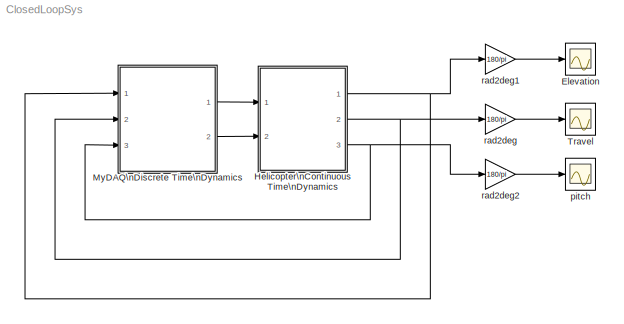
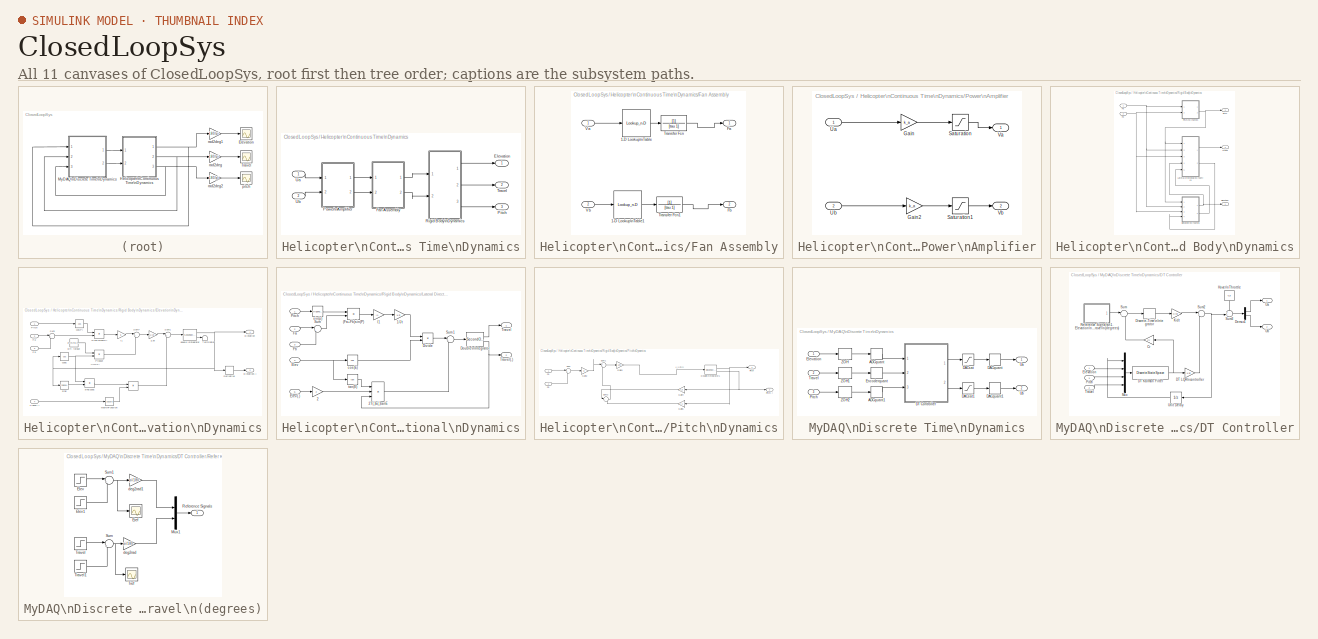
[diagram: thumbnail index - all 11 canvases of the model, root first then tree order]
MODEL ClosedLoopSys
KIND model
BLOCK [Scope] Elevation
  Floating = off
  NumInputPorts = 1
  Ports = [1]
  SID = 796
  ScopeSpecificationString = Simulink.scopes.TimeScopeBlockCfg('CurrentConfiguration', extmgr.ConfigurationSet(extmgr.Configuration('Core','General UI',true),extmgr.Configuration('Core','Source UI',true),extmgr.Configuration('Sources','WiredSimulink',true,'DataLogging',true,'DataLoggingVariableName','elev','DataLoggingSaveFormat','StructureWithTime','DataLoggingDecimation','1','DataLoggingDecimateData',true),extmgr.Configurat...<+1729ch>
BLOCK [SubSystem] Helicopter\nContinuous Time\nDynamics
  Ports = [2, 3]
  RequestExecContextInheritance = off
  SID = 934
BLOCK [Outport] Helicopter\nContinuous Time\nDynamics/Elevation
  IconDisplay = Port number
  SID = 1020
  VectorParamsAs1DForOutWhenUnconnected = off
BLOCK [SubSystem] Helicopter\nContinuous Time\nDynamics/Fan Assembly
  Ports = [2, 2]
  RequestExecContextInheritance = off
  SID = 937
BLOCK [Lookup_n-D] Helicopter\nContinuous Time\nDynamics/Fan Assembly/1-D Lookup\nTable
  BreakpointsForDimension1 = V_ab
  InternalRulePriority = Speed
  NumberOfTableDimensions = 1
  Ports = [1, 1]
  RndMeth = Simplest
  SID = 940
  Table = F_ab
BLOCK [Lookup_n-D] Helicopter\nContinuous Time\nDynamics/Fan Assembly/1-D Lookup\nTable1
  BreakpointsForDimension1 = V_ab
  InternalRulePriority = Speed
  NumberOfTableDimensions = 1
  Ports = [1, 1]
  RndMeth = Simplest
  SID = 941
  Table = F_ab
BLOCK [Outport] Helicopter\nContinuous Time\nDynamics/Fan Assembly/Fa
  IconDisplay = Port number
  SID = 944
  VectorParamsAs1DForOutWhenUnconnected = off
BLOCK [Outport] Helicopter\nContinuous Time\nDynamics/Fan Assembly/Fb
  IconDisplay = Port number
  Port = 2
  SID = 945
  VectorParamsAs1DForOutWhenUnconnected = off
BLOCK [TransferFcn] Helicopter\nContinuous Time\nDynamics/Fan Assembly/Transfer Fcn
  Denominator = [tau 1]
  SID = 942
BLOCK [TransferFcn] Helicopter\nContinuous Time\nDynamics/Fan Assembly/Transfer Fcn1
  Denominator = [tau 1]
  SID = 943
BLOCK [Inport] Helicopter\nContinuous Time\nDynamics/Fan Assembly/Va
  IconDisplay = Port number
  SID = 938
BLOCK [Inport] Helicopter\nContinuous Time\nDynamics/Fan Assembly/Vb
  IconDisplay = Port number
  Port = 2
  SID = 939
BLOCK [Outport] Helicopter\nContinuous Time\nDynamics/Pitch
  IconDisplay = Port number
  Port = 3
  SID = 1022
  VectorParamsAs1DForOutWhenUnconnected = off
BLOCK [SubSystem] Helicopter\nContinuous Time\nDynamics/Power\nAmplifier
  Ports = [2, 2]
  RequestExecContextInheritance = off
  SID = 946
BLOCK [Gain] Helicopter\nContinuous Time\nDynamics/Power\nAmplifier/Gain
  Gain = k_a
  OutDataTypeStr = Inherit: Inherit via internal rule
  ParamDataTypeStr = Inherit: Inherit via internal rule
  SID = 949
  SaturateOnIntegerOverflow = off
BLOCK [Gain] Helicopter\nContinuous Time\nDynamics/Power\nAmplifier/Gain2
  Gain = k_a
  OutDataTypeStr = Inherit: Inherit via internal rule
  ParamDataTypeStr = Inherit: Inherit via internal rule
  SID = 950
  SaturateOnIntegerOverflow = off
BLOCK [Saturate] Helicopter\nContinuous Time\nDynamics/Power\nAmplifier/Saturation
  InputPortMap = u0
  LowerLimit = amp_sat_l
  Ports = [1, 1]
  SID = 951
  UpperLimit = amp_sat_u
BLOCK [Saturate] Helicopter\nContinuous Time\nDynamics/Power\nAmplifier/Saturation1
  InputPortMap = u0
  LowerLimit = amp_sat_l
  Ports = [1, 1]
  SID = 952
  UpperLimit = amp_sat_u
BLOCK [Inport] Helicopter\nContinuous Time\nDynamics/Power\nAmplifier/Ua
  IconDisplay = Port number
  SID = 947
BLOCK [Inport] Helicopter\nContinuous Time\nDynamics/Power\nAmplifier/Ub
  IconDisplay = Port number
  Port = 2
  SID = 948
BLOCK [Outport] Helicopter\nContinuous Time\nDynamics/Power\nAmplifier/Va
  IconDisplay = Port number
  SID = 953
  VectorParamsAs1DForOutWhenUnconnected = off
BLOCK [Outport] Helicopter\nContinuous Time\nDynamics/Power\nAmplifier/Vb
  IconDisplay = Port number
  Port = 2
  SID = 954
  VectorParamsAs1DForOutWhenUnconnected = off
BLOCK [SubSystem] Helicopter\nContinuous Time\nDynamics/Rigid Body\nDynamics
  Ports = [2, 3]
  RequestExecContextInheritance = off
  SID = 955
BLOCK [Outport] Helicopter\nContinuous Time\nDynamics/Rigid Body\nDynamics/Elevation
  IconDisplay = Port number
  SID = 1017
  VectorParamsAs1DForOutWhenUnconnected = off
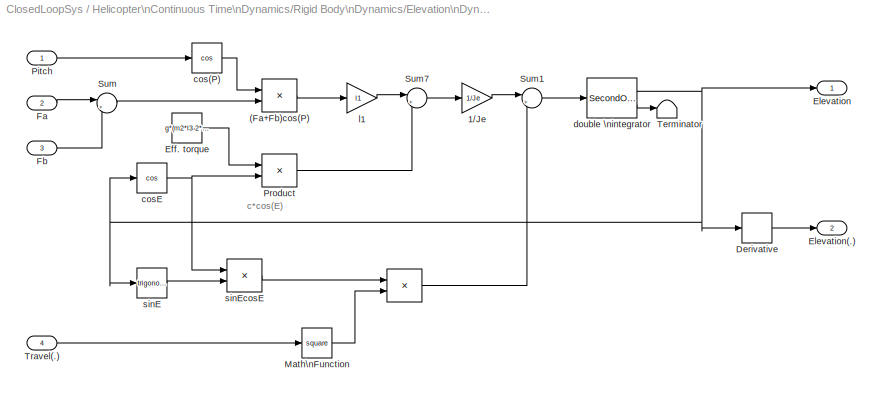
BLOCK [SubSystem] Helicopter\nContinuous Time\nDynamics/Rigid Body\nDynamics/Elevation\nDynamics
  Ports = [4, 2]
  RequestExecContextInheritance = off
  SID = 958
BLOCK [Product] Helicopter\nContinuous Time\nDynamics/Rigid Body\nDynamics/Elevation\nDynamics/ 
  Ports = [2, 1]
  SID = 963
BLOCK [Product] Helicopter\nContinuous Time\nDynamics/Rigid Body\nDynamics/Elevation\nDynamics/(Fa+Fb)cos(P)
  Ports = [2, 1]
  SID = 964
BLOCK [Gain] Helicopter\nContinuous Time\nDynamics/Rigid Body\nDynamics/Elevation\nDynamics/1//Je
  Gain = 1/Je
  SID = 965
BLOCK [Derivative] Helicopter\nContinuous Time\nDynamics/Rigid Body\nDynamics/Elevation\nDynamics/Derivative
  SID = 966
BLOCK [Constant] Helicopter\nContinuous Time\nDynamics/Rigid Body\nDynamics/Elevation\nDynamics/Eff. torque
  SID = 967
  Value = g*(m2*l3-2*m1*l1)
BLOCK [Outport] Helicopter\nContinuous Time\nDynamics/Rigid Body\nDynamics/Elevation\nDynamics/Elevation
  IconDisplay = Port number
  SID = 980
  VectorParamsAs1DForOutWhenUnconnected = off
BLOCK [Outport] Helicopter\nContinuous Time\nDynamics/Rigid Body\nDynamics/Elevation\nDynamics/Elevation(.)
  IconDisplay = Port number
  Port = 2
  SID = 981
  VectorParamsAs1DForOutWhenUnconnected = off
BLOCK [Inport] Helicopter\nContinuous Time\nDynamics/Rigid Body\nDynamics/Elevation\nDynamics/Fa
  IconDisplay = Port number
  Port = 2
  SID = 960
BLOCK [Inport] Helicopter\nContinuous Time\nDynamics/Rigid Body\nDynamics/Elevation\nDynamics/Fb
  IconDisplay = Port number
  Port = 3
  SID = 961
BLOCK [Math] Helicopter\nContinuous Time\nDynamics/Rigid Body\nDynamics/Elevation\nDynamics/Math\nFunction
  Operator = square
  Ports = [1, 1]
  SID = 968
BLOCK [Inport] Helicopter\nContinuous Time\nDynamics/Rigid Body\nDynamics/Elevation\nDynamics/Pitch
  IconDisplay = Port number
  SID = 959
BLOCK [Product] Helicopter\nContinuous Time\nDynamics/Rigid Body\nDynamics/Elevation\nDynamics/Product
  Ports = [2, 1]
  SID = 969
BLOCK [Sum] Helicopter\nContinuous Time\nDynamics/Rigid Body\nDynamics/Elevation\nDynamics/Sum
  IconShape = round
  Inputs = |++
  Ports = [2, 1]
  SID = 970
BLOCK [Sum] Helicopter\nContinuous Time\nDynamics/Rigid Body\nDynamics/Elevation\nDynamics/Sum1
  IconShape = round
  Inputs = |+-
  Ports = [2, 1]
  SID = 971
BLOCK [Sum] Helicopter\nContinuous Time\nDynamics/Rigid Body\nDynamics/Elevation\nDynamics/Sum7
  IconShape = round
  Inputs = |++
  Ports = [2, 1]
  SID = 972
BLOCK [Terminator] Helicopter\nContinuous Time\nDynamics/Rigid Body\nDynamics/Elevation\nDynamics/Terminator
  SID = 973
BLOCK [Inport] Helicopter\nContinuous Time\nDynamics/Rigid Body\nDynamics/Elevation\nDynamics/Travel(.)
  IconDisplay = Port number
  Port = 4
  SID = 962
BLOCK [Trigonometry] Helicopter\nContinuous Time\nDynamics/Rigid Body\nDynamics/Elevation\nDynamics/cos(P)
  Operator = cos
  Ports = [1, 1]
  SID = 974
BLOCK [Trigonometry] Helicopter\nContinuous Time\nDynamics/Rigid Body\nDynamics/Elevation\nDynamics/cosE
  Operator = cos
  Ports = [1, 1]
  SID = 975
BLOCK [SecondOrderIntegrator] Helicopter\nContinuous Time\nDynamics/Rigid Body\nDynamics/Elevation\nDynamics/double \nintegrator
  ICX = e_lim_l
  LimitDXDT = on
  LimitX = on
  LowerLimitDXDT = -2*pi
  LowerLimitX = e_lim_l
  Ports = [1, 2]
  SID = 976
  UpperLimitDXDT = 2*pi
  UpperLimitX = e_lim_u
BLOCK [Gain] Helicopter\nContinuous Time\nDynamics/Rigid Body\nDynamics/Elevation\nDynamics/l1
  Gain = l1
  SID = 977
BLOCK [Trigonometry] Helicopter\nContinuous Time\nDynamics/Rigid Body\nDynamics/Elevation\nDynamics/sinE
  Ports = [1, 1]
  SID = 978
BLOCK [Product] Helicopter\nContinuous Time\nDynamics/Rigid Body\nDynamics/Elevation\nDynamics/sinEcosE
  Ports = [2, 1]
  SID = 979
BLOCK [Inport] Helicopter\nContinuous Time\nDynamics/Rigid Body\nDynamics/Fa
  IconDisplay = Port number
  SID = 956
BLOCK [Inport] Helicopter\nContinuous Time\nDynamics/Rigid Body\nDynamics/Fb
  IconDisplay = Port number
  Port = 2
  SID = 957
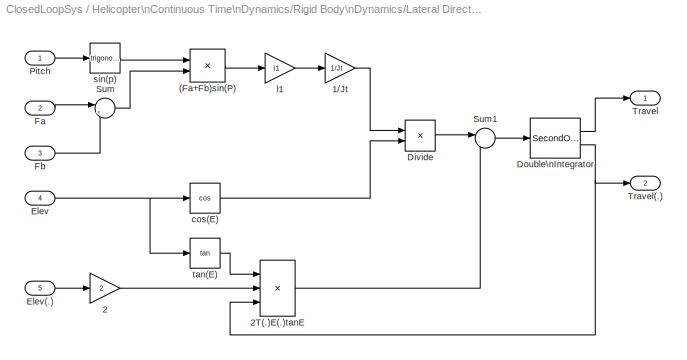
BLOCK [SubSystem] Helicopter\nContinuous Time\nDynamics/Rigid Body\nDynamics/Lateral Directional\nDynamics
  Ports = [5, 2]
  RequestExecContextInheritance = off
  SID = 997
BLOCK [Product] Helicopter\nContinuous Time\nDynamics/Rigid Body\nDynamics/Lateral Directional\nDynamics/(Fa+Fb)sin(P)
  Ports = [2, 1]
  SID = 1003
BLOCK [Gain] Helicopter\nContinuous Time\nDynamics/Rigid Body\nDynamics/Lateral Directional\nDynamics/1//Jt
  Gain = 1/Jt
  SID = 1004
BLOCK [Gain] Helicopter\nContinuous Time\nDynamics/Rigid Body\nDynamics/Lateral Directional\nDynamics/2
  Gain = 2
  SID = 1005
BLOCK [Product] Helicopter\nContinuous Time\nDynamics/Rigid Body\nDynamics/Lateral Directional\nDynamics/2T(.)E(.)tanE
  Inputs = 3
  Ports = [3, 1]
  SID = 1006
BLOCK [Product] Helicopter\nContinuous Time\nDynamics/Rigid Body\nDynamics/Lateral Directional\nDynamics/Divide
  InputSameDT = off
  Inputs = */
  OutDataTypeStr = Inherit: Inherit via internal rule
  Ports = [2, 1]
  RndMeth = Floor
  SID = 1007
  SaturateOnIntegerOverflow = off
BLOCK [SecondOrderIntegrator] Helicopter\nContinuous Time\nDynamics/Rigid Body\nDynamics/Lateral Directional\nDynamics/Double\nIntegrator
  LimitDXDT = on
  LowerLimitDXDT = -2
  LowerLimitX = 0
  Ports = [1, 2]
  SID = 1008
  UpperLimitDXDT = 2
  UpperLimitX = 1
BLOCK [Inport] Helicopter\nContinuous Time\nDynamics/Rigid Body\nDynamics/Lateral Directional\nDynamics/Elev
  IconDisplay = Port number
  Port = 4
  SID = 1001
BLOCK [Inport] Helicopter\nContinuous Time\nDynamics/Rigid Body\nDynamics/Lateral Directional\nDynamics/Elev(.)
  IconDisplay = Port number
  Port = 5
  SID = 1002
BLOCK [Inport] Helicopter\nContinuous Time\nDynamics/Rigid Body\nDynamics/Lateral Directional\nDynamics/Fa
  IconDisplay = Port number
  Port = 2
  SID = 999
BLOCK [Inport] Helicopter\nContinuous Time\nDynamics/Rigid Body\nDynamics/Lateral Directional\nDynamics/Fb
  IconDisplay = Port number
  Port = 3
  SID = 1000
BLOCK [Inport] Helicopter\nContinuous Time\nDynamics/Rigid Body\nDynamics/Lateral Directional\nDynamics/Pitch
  IconDisplay = Port number
  SID = 998
BLOCK [Sum] Helicopter\nContinuous Time\nDynamics/Rigid Body\nDynamics/Lateral Directional\nDynamics/Sum
  IconShape = round
  Inputs = |++
  Ports = [2, 1]
  SID = 1009
BLOCK [Sum] Helicopter\nContinuous Time\nDynamics/Rigid Body\nDynamics/Lateral Directional\nDynamics/Sum1
  IconShape = round
  Inputs = |-+
  Ports = [2, 1]
  SID = 1010
BLOCK [Outport] Helicopter\nContinuous Time\nDynamics/Rigid Body\nDynamics/Lateral Directional\nDynamics/Travel
  IconDisplay = Port number
  SID = 1015
  VectorParamsAs1DForOutWhenUnconnected = off
BLOCK [Outport] Helicopter\nContinuous Time\nDynamics/Rigid Body\nDynamics/Lateral Directional\nDynamics/Travel(.)
  IconDisplay = Port number
  Port = 2
  SID = 1016
  VectorParamsAs1DForOutWhenUnconnected = off
BLOCK [Trigonometry] Helicopter\nContinuous Time\nDynamics/Rigid Body\nDynamics/Lateral Directional\nDynamics/cos(E)
  Operator = cos
  Ports = [1, 1]
  SID = 1011
BLOCK [Gain] Helicopter\nContinuous Time\nDynamics/Rigid Body\nDynamics/Lateral Directional\nDynamics/l1
  Gain = l1
  SID = 1012
BLOCK [Trigonometry] Helicopter\nContinuous Time\nDynamics/Rigid Body\nDynamics/Lateral Directional\nDynamics/sin(p)
  Ports = [1, 1]
  SID = 1013
BLOCK [Trigonometry] Helicopter\nContinuous Time\nDynamics/Rigid Body\nDynamics/Lateral Directional\nDynamics/tan(E)
  Operator = tan
  Ports = [1, 1]
  SID = 1014
BLOCK [Outport] Helicopter\nContinuous Time\nDynamics/Rigid Body\nDynamics/Pitch
  IconDisplay = Port number
  Port = 3
  SID = 1019
  VectorParamsAs1DForOutWhenUnconnected = off
BLOCK [SubSystem] Helicopter\nContinuous Time\nDynamics/Rigid Body\nDynamics/Pitch\nDynamics
  Ports = [2, 2]
  RequestExecContextInheritance = off
  SID = 983
BLOCK [SecondOrderIntegrator] Helicopter\nContinuous Time\nDynamics/Rigid Body\nDynamics/Pitch\nDynamics/Double\nIntegrator1
  ICX = p_lim_u
  LimitX = on
  LowerLimitX = p_lim_l
  Ports = [1, 2]
  SID = 986
  UpperLimitX = p_lim_u
BLOCK [Inport] Helicopter\nContinuous Time\nDynamics/Rigid Body\nDynamics/Pitch\nDynamics/Fa
  IconDisplay = Port number
  SID = 984
BLOCK [Inport] Helicopter\nContinuous Time\nDynamics/Rigid Body\nDynamics/Pitch\nDynamics/Fb
  IconDisplay = Port number
  Port = 2
  SID = 985
BLOCK [Gain] Helicopter\nContinuous Time\nDynamics/Rigid Body\nDynamics/Pitch\nDynamics/Gain2
  Gain = l2
  OutDataTypeStr = Inherit: Inherit via internal rule
  ParamDataTypeStr = Inherit: Inherit via internal rule
  SID = 987
  SaturateOnIntegerOverflow = off
BLOCK [Gain] Helicopter\nContinuous Time\nDynamics/Rigid Body\nDynamics/Pitch\nDynamics/Gain3
  Gain = 1/Jp
  OutDataTypeStr = Inherit: Inherit via internal rule
  ParamDataTypeStr = Inherit: Inherit via internal rule
  SID = 988
  SaturateOnIntegerOverflow = off
BLOCK [Gain] Helicopter\nContinuous Time\nDynamics/Rigid Body\nDynamics/Pitch\nDynamics/Gain4
  Gain = k_d
  OutDataTypeStr = Inherit: Inherit via internal rule
  ParamDataTypeStr = Inherit: Inherit via internal rule
  SID = 989
  SaturateOnIntegerOverflow = off
BLOCK [Gain] Helicopter\nContinuous Time\nDynamics/Rigid Body\nDynamics/Pitch\nDynamics/Gain5
  Gain = k_s
  OutDataTypeStr = Inherit: Inherit via internal rule
  ParamDataTypeStr = Inherit: Inherit via internal rule
  SID = 990
  SaturateOnIntegerOverflow = off
BLOCK [Outport] Helicopter\nContinuous Time\nDynamics/Rigid Body\nDynamics/Pitch\nDynamics/Pitch
  IconDisplay = Port number
  SID = 994
  VectorParamsAs1DForOutWhenUnconnected = off
BLOCK [Outport] Helicopter\nContinuous Time\nDynamics/Rigid Body\nDynamics/Pitch\nDynamics/Pitch(.)
  IconDisplay = Port number
  Port = 2
  SID = 995
  VectorParamsAs1DForOutWhenUnconnected = off
BLOCK [Sum] Helicopter\nContinuous Time\nDynamics/Rigid Body\nDynamics/Pitch\nDynamics/Sum
  IconShape = round
  InputSameDT = off
  Inputs = |+-
  OutDataTypeStr = Inherit: Inherit via internal rule
  Ports = [2, 1]
  SID = 991
  SaturateOnIntegerOverflow = off
BLOCK [Sum] Helicopter\nContinuous Time\nDynamics/Rigid Body\nDynamics/Pitch\nDynamics/Sum1
  IconShape = round
  InputSameDT = off
  Inputs = +-
  OutDataTypeStr = Inherit: Inherit via internal rule
  Ports = [2, 1]
  SID = 992
  SaturateOnIntegerOverflow = off
BLOCK [Sum] Helicopter\nContinuous Time\nDynamics/Rigid Body\nDynamics/Pitch\nDynamics/Sum2
  IconShape = round
  InputSameDT = off
  Inputs = |++
  OutDataTypeStr = Inherit: Inherit via internal rule
  Ports = [2, 1]
  SID = 993
  SaturateOnIntegerOverflow = off
BLOCK [Outport] Helicopter\nContinuous Time\nDynamics/Rigid Body\nDynamics/Travel
  IconDisplay = Port number
  Port = 2
  SID = 1018
  VectorParamsAs1DForOutWhenUnconnected = off
BLOCK [Outport] Helicopter\nContinuous Time\nDynamics/Travel
  IconDisplay = Port number
  Port = 2
  SID = 1021
  VectorParamsAs1DForOutWhenUnconnected = off
BLOCK [Inport] Helicopter\nContinuous Time\nDynamics/Ua
  IconDisplay = Port number
  SID = 935
BLOCK [Inport] Helicopter\nContinuous Time\nDynamics/Ub
  IconDisplay = Port number
  Port = 2
  SID = 936
BLOCK [SubSystem] MyDAQ\nDiscrete Time\nDynamics
  Ports = [3, 2]
  RequestExecContextInheritance = off
  SID = 881
BLOCK [Quantizer] MyDAQ\nDiscrete Time\nDynamics/ADCquant
  QuantizationInterval = ADC_Vres
  SID = 885
  SampleTime = T
BLOCK [Quantizer] MyDAQ\nDiscrete Time\nDynamics/ADCquant1
  QuantizationInterval = ADC_Vres
  SID = 886
  SampleTime = T
BLOCK [Quantizer] MyDAQ\nDiscrete Time\nDynamics/DACquant
  QuantizationInterval = DAC_Vres
  SID = 887
  SampleTime = T
BLOCK [Quantizer] MyDAQ\nDiscrete Time\nDynamics/DACquant1
  QuantizationInterval = DAC_Vres
  SID = 888
  SampleTime = T
BLOCK [Saturate] MyDAQ\nDiscrete Time\nDynamics/DACsat
  InputPortMap = u0
  LowerLimit = DAC_lim_l
  Ports = [1, 1]
  SID = 889
  SampleTime = T
  UpperLimit = DAC_lim_u
BLOCK [Saturate] MyDAQ\nDiscrete Time\nDynamics/DACsat1
  InputPortMap = u0
  LowerLimit = DAC_lim_l
  Ports = [1, 1]
  SID = 890
  SampleTime = T
  UpperLimit = DAC_lim_u
BLOCK [SubSystem] MyDAQ\nDiscrete Time\nDynamics/DT Controller
  Ports = [3, 2]
  RequestExecContextInheritance = off
  SID = 891
BLOCK [Gain] MyDAQ\nDiscrete Time\nDynamics/DT Controller/Cr
  Gain = Cr
  Multiplication = Matrix(K*u)
  OutDataTypeStr = Inherit: Inherit via internal rule
  ParamDataTypeStr = Inherit: Inherit via internal rule
  SID = 895
  SaturateOnIntegerOverflow = off
BLOCK [DiscreteStateSpace] MyDAQ\nDiscrete Time\nDynamics/DT Controller/DT Kalman Filter
  A = kdfilt.a
  B = kdfilt.b
  C = kdfilt.c(size(C,1)+1:end,:)
  D = kdfilt.d(size(C,1)+1:end,:)
  InitialCondition = [e_lim_l; 0; 0; 0; 0; 0]
  SID = 896
  SampleTime = T
BLOCK [Gain] MyDAQ\nDiscrete Time\nDynamics/DT Controller/DT LQR\ncontroller
  Gain = Kdt
  Multiplication = Matrix(K*u)
  OutDataTypeStr = Inherit: Inherit via internal rule
  ParamDataTypeStr = Inherit: Inherit via internal rule
  SID = 897
  SaturateOnIntegerOverflow = off
BLOCK [Demux] MyDAQ\nDiscrete Time\nDynamics/DT Controller/Demux1
  DisplayOption = bar
  Outputs = 2
  Ports = [1, 2]
  SID = 898
BLOCK [DiscreteIntegrator] MyDAQ\nDiscrete Time\nDynamics/DT Controller/Discrete-Time\nIntegrator
  ICPrevOutput = DiscIntNeverNeededParam
  ICPrevScaledInput = DiscIntNeverNeededParam
  Ports = [1, 1]
  SID = 899
  SampleTime = T
BLOCK [Inport] MyDAQ\nDiscrete Time\nDynamics/DT Controller/Elevation
  IconDisplay = Port number
  SID = 892
BLOCK [Constant] MyDAQ\nDiscrete Time\nDynamics/DT Controller/Hover\nThrottle
  SID = 900
  SampleTime = T
  Value = T_e
BLOCK [Gain] MyDAQ\nDiscrete Time\nDynamics/DT Controller/Kidt
  Gain = Kidt
  Multiplication = Matrix(K*u)
  OutDataTypeStr = Inherit: Inherit via internal rule
  ParamDataTypeStr = Inherit: Inherit via internal rule
  SID = 901
  SaturateOnIntegerOverflow = off
BLOCK [Mux] MyDAQ\nDiscrete Time\nDynamics/DT Controller/Mux
  DisplayOption = bar
  Ports = [4, 1]
  SID = 902
BLOCK [Inport] MyDAQ\nDiscrete Time\nDynamics/DT Controller/Pitch
  IconDisplay = Port number
  Port = 3
  SID = 894
BLOCK [SubSystem] MyDAQ\nDiscrete Time\nDynamics/DT Controller/Reference Signals\n1. Elevation\n2. Travel\n(degrees)
  Ports = [0, 1]
  RequestExecContextInheritance = off
  SID = 903
BLOCK [Step] MyDAQ\nDiscrete Time\nDynamics/DT Controller/Reference Signals\n1. Elevation\n2. Travel\n(degrees)/Elev
  After = 0
  SID = 904
  SampleTime = T
  Time = 0
BLOCK [Step] MyDAQ\nDiscrete Time\nDynamics/DT Controller/Reference Signals\n1. Elevation\n2. Travel\n(degrees)/Elev1
  After = 10
  SID = 905
  SampleTime = T
  Time = 30
BLOCK [Scope] MyDAQ\nDiscrete Time\nDynamics/DT Controller/Reference Signals\n1. Elevation\n2. Travel\n(degrees)/Eref
  Floating = off
  NumInputPorts = 1
  Ports = [1]
  SID = 906
  ScopeSpecificationString = Simulink.scopes.TimeScopeBlockCfg('CurrentConfiguration', extmgr.ConfigurationSet(extmgr.Configuration('Core','General UI',true),extmgr.Configuration('Core','Source UI',true),extmgr.Configuration('Sources','WiredSimulink',true,'DataLogging',true,'DataLoggingVariableName','eref','DataLoggingSaveFormat','StructureWithTime','DataLoggingDecimation','1','DataLoggingDecimateData',true),extmgr.Configurat...<+1684ch>
BLOCK [Mux] MyDAQ\nDiscrete Time\nDynamics/DT Controller/Reference Signals\n1. Elevation\n2. Travel\n(degrees)/Mux1
  DisplayOption = bar
  Inputs = 2
  Ports = [2, 1]
  SID = 907
BLOCK [Outport] MyDAQ\nDiscrete Time\nDynamics/DT Controller/Reference Signals\n1. Elevation\n2. Travel\n(degrees)/Reference Signals
  IconDisplay = Port number
  SID = 915
  VectorParamsAs1DForOutWhenUnconnected = off
BLOCK [Sum] MyDAQ\nDiscrete Time\nDynamics/DT Controller/Reference Signals\n1. Elevation\n2. Travel\n(degrees)/Sum
  IconShape = round
  Inputs = |++
  Ports = [2, 1]
  SID = 908
BLOCK [Sum] MyDAQ\nDiscrete Time\nDynamics/DT Controller/Reference Signals\n1. Elevation\n2. Travel\n(degrees)/Sum1
  IconShape = round
  Inputs = |++
  Ports = [2, 1]
  SID = 909
  SampleTime = T
BLOCK [Step] MyDAQ\nDiscrete Time\nDynamics/DT Controller/Reference Signals\n1. Elevation\n2. Travel\n(degrees)/Travel
  After = 180
  SID = 910
  SampleTime = T
  Time = 10
BLOCK [Step] MyDAQ\nDiscrete Time\nDynamics/DT Controller/Reference Signals\n1. Elevation\n2. Travel\n(degrees)/Travel1
  After = -180
  SID = 911
  SampleTime = T
  Time = 40
BLOCK [Scope] MyDAQ\nDiscrete Time\nDynamics/DT Controller/Reference Signals\n1. Elevation\n2. Travel\n(degrees)/Tref
  Floating = off
  NumInputPorts = 1
  Ports = [1]
  SID = 912
  ScopeSpecificationString = Simulink.scopes.TimeScopeBlockCfg('CurrentConfiguration', extmgr.ConfigurationSet(extmgr.Configuration('Core','General UI',true),extmgr.Configuration('Core','Source UI',true),extmgr.Configuration('Sources','WiredSimulink',true,'DataLogging',true,'DataLoggingVariableName','tref','DataLoggingSaveFormat','StructureWithTime','DataLoggingDecimation','1','DataLoggingDecimateData',true),extmgr.Configurat...<+1685ch>
BLOCK [Gain] MyDAQ\nDiscrete Time\nDynamics/DT Controller/Reference Signals\n1. Elevation\n2. Travel\n(degrees)/deg2rad
  Gain = pi/180
  SID = 913
BLOCK [Gain] MyDAQ\nDiscrete Time\nDynamics/DT Controller/Reference Signals\n1. Elevation\n2. Travel\n(degrees)/deg2rad1
  Gain = pi/180
  SID = 914
BLOCK [Sum] MyDAQ\nDiscrete Time\nDynamics/DT Controller/Sum
  IconShape = round
  InputSameDT = off
  Inputs = |+-
  OutDataTypeStr = Inherit: Inherit via internal rule
  Ports = [2, 1]
  SID = 916
  SampleTime = T
  SaturateOnIntegerOverflow = off
BLOCK [Sum] MyDAQ\nDiscrete Time\nDynamics/DT Controller/Sum2
  IconShape = round
  InputSameDT = off
  Inputs = |+-
  OutDataTypeStr = Inherit: Inherit via internal rule
  Ports = [2, 1]
  SID = 917
  SampleTime = T
  SaturateOnIntegerOverflow = off
BLOCK [Sum] MyDAQ\nDiscrete Time\nDynamics/DT Controller/Sum3
  IconShape = round
  InputSameDT = off
  Inputs = ++|
  OutDataTypeStr = Inherit: Inherit via internal rule
  Ports = [2, 1]
  SID = 918
  SampleTime = T
  SaturateOnIntegerOverflow = off
BLOCK [Inport] MyDAQ\nDiscrete Time\nDynamics/DT Controller/Travel
  IconDisplay = Port number
  Port = 2
  SID = 893
BLOCK [Outport] MyDAQ\nDiscrete Time\nDynamics/DT Controller/Ua
  IconDisplay = Port number
  SID = 920
  VectorParamsAs1DForOutWhenUnconnected = off
BLOCK [Outport] MyDAQ\nDiscrete Time\nDynamics/DT Controller/Ub
  IconDisplay = Port number
  Port = 2
  SID = 921
  VectorParamsAs1DForOutWhenUnconnected = off
BLOCK [UnitDelay] MyDAQ\nDiscrete Time\nDynamics/DT Controller/Unit Delay
  HasFrameUpgradeWarning = on
  SID = 919
  SampleTime = T
BLOCK [Inport] MyDAQ\nDiscrete Time\nDynamics/Elevation
  IconDisplay = Port number
  SID = 882
BLOCK [Quantizer] MyDAQ\nDiscrete Time\nDynamics/Encoderquant
  QuantizationInterval = Encoder_res
  SID = 922
  SampleTime = T
BLOCK [Inport] MyDAQ\nDiscrete Time\nDynamics/Pitch
  IconDisplay = Port number
  Port = 3
  SID = 884
BLOCK [Inport] MyDAQ\nDiscrete Time\nDynamics/Travel
  IconDisplay = Port number
  Port = 2
  SID = 883
BLOCK [Outport] MyDAQ\nDiscrete Time\nDynamics/Ua
  IconDisplay = Port number
  SID = 926
  VectorParamsAs1DForOutWhenUnconnected = off
BLOCK [Outport] MyDAQ\nDiscrete Time\nDynamics/Ub
  IconDisplay = Port number
  Port = 2
  SID = 927
  VectorParamsAs1DForOutWhenUnconnected = off
BLOCK [ZeroOrderHold] MyDAQ\nDiscrete Time\nDynamics/ZOH
  SID = 923
  SampleTime = T
BLOCK [ZeroOrderHold] MyDAQ\nDiscrete Time\nDynamics/ZOH1
  SID = 924
  SampleTime = T
BLOCK [ZeroOrderHold] MyDAQ\nDiscrete Time\nDynamics/ZOH2
  SID = 925
  SampleTime = T
BLOCK [Scope] Travel
  Floating = off
  NumInputPorts = 1
  Ports = [1]
  SID = 928
  ScopeSpecificationString = Simulink.scopes.TimeScopeBlockCfg('CurrentConfiguration', extmgr.ConfigurationSet(extmgr.Configuration('Core','General UI',true),extmgr.Configuration('Core','Source UI',true),extmgr.Configuration('Sources','WiredSimulink',true,'DataLogging',true,'DataLoggingVariableName','trav','DataLoggingSaveFormat','StructureWithTime','DataLoggingDecimation','1','DataLoggingDecimateData',true),extmgr.Configurat...<+1757ch>
BLOCK [Scope] pitch
  Floating = off
  NumInputPorts = 1
  Ports = [1]
  SID = 929
  ScopeSpecificationString = Simulink.scopes.TimeScopeBlockCfg('CurrentConfiguration', extmgr.ConfigurationSet(extmgr.Configuration('Core','General UI',true),extmgr.Configuration('Core','Source UI',true),extmgr.Configuration('Sources','WiredSimulink',true,'DataLogging',true,'DataLoggingVariableName','pitch','DataLoggingSaveFormat','StructureWithTime','DataLoggingDecimation','1','DataLoggingDecimateData',true),extmgr.Configura...<+1756ch>
BLOCK [Gain] rad2deg
  Gain = 180/pi
  SID = 930
BLOCK [Gain] rad2deg1
  Gain = 180/pi
  SID = 931
BLOCK [Gain] rad2deg2
  Gain = 180/pi
  SID = 932
ANNOTATION Helicopter\nContinuous Time\nDynamics/Rigid Body\nDynamics/Elevation\nDynamics: c*cos(E)
ANNOTATION Helicopter\nContinuous Time\nDynamics/Rigid Body\nDynamics/Pitch\nDynamics: k_s*Pitch
LINE Helicopter\nContinuous Time\nDynamics/Fan Assembly/1-D Lookup\nTable1:1 -> Helicopter\nContinuous Time\nDynamics/Fan Assembly/Transfer Fcn1:1
LINE Helicopter\nContinuous Time\nDynamics/Fan Assembly/1-D Lookup\nTable:1 -> Helicopter\nContinuous Time\nDynamics/Fan Assembly/Transfer Fcn:1
LINE Helicopter\nContinuous Time\nDynamics/Fan Assembly/Transfer Fcn1:1 -> Helicopter\nContinuous Time\nDynamics/Fan Assembly/Fb:1
LINE Helicopter\nContinuous Time\nDynamics/Fan Assembly/Transfer Fcn:1 -> Helicopter\nContinuous Time\nDynamics/Fan Assembly/Fa:1
LINE Helicopter\nContinuous Time\nDynamics/Fan Assembly/Va:1 -> Helicopter\nContinuous Time\nDynamics/Fan Assembly/1-D Lookup\nTable:1
LINE Helicopter\nContinuous Time\nDynamics/Fan Assembly/Vb:1 -> Helicopter\nContinuous Time\nDynamics/Fan Assembly/1-D Lookup\nTable1:1
LINE Helicopter\nContinuous Time\nDynamics/Fan Assembly:1 -> Helicopter\nContinuous Time\nDynamics/Rigid Body\nDynamics:1
LINE Helicopter\nContinuous Time\nDynamics/Fan Assembly:2 -> Helicopter\nContinuous Time\nDynamics/Rigid Body\nDynamics:2
LINE Helicopter\nContinuous Time\nDynamics/Power\nAmplifier/Gain2:1 -> Helicopter\nContinuous Time\nDynamics/Power\nAmplifier/Saturation1:1
LINE Helicopter\nContinuous Time\nDynamics/Power\nAmplifier/Gain:1 -> Helicopter\nContinuous Time\nDynamics/Power\nAmplifier/Saturation:1
LINE Helicopter\nContinuous Time\nDynamics/Power\nAmplifier/Saturation1:1 -> Helicopter\nContinuous Time\nDynamics/Power\nAmplifier/Vb:1
LINE Helicopter\nContinuous Time\nDynamics/Power\nAmplifier/Saturation:1 -> Helicopter\nContinuous Time\nDynamics/Power\nAmplifier/Va:1
LINE Helicopter\nContinuous Time\nDynamics/Power\nAmplifier/Ua:1 -> Helicopter\nContinuous Time\nDynamics/Power\nAmplifier/Gain:1
LINE Helicopter\nContinuous Time\nDynamics/Power\nAmplifier/Ub:1 -> Helicopter\nContinuous Time\nDynamics/Power\nAmplifier/Gain2:1
LINE Helicopter\nContinuous Time\nDynamics/Power\nAmplifier:1 -> Helicopter\nContinuous Time\nDynamics/Fan Assembly:1
LINE Helicopter\nContinuous Time\nDynamics/Power\nAmplifier:2 -> Helicopter\nContinuous Time\nDynamics/Fan Assembly:2
LINE Helicopter\nContinuous Time\nDynamics/Rigid Body\nDynamics/Elevation\nDynamics/ :1 -> Helicopter\nContinuous Time\nDynamics/Rigid Body\nDynamics/Elevation\nDynamics/Sum1:2
LINE Helicopter\nContinuous Time\nDynamics/Rigid Body\nDynamics/Elevation\nDynamics/(Fa+Fb)cos(P):1 -> Helicopter\nContinuous Time\nDynamics/Rigid Body\nDynamics/Elevation\nDynamics/l1:1
LINE Helicopter\nContinuous Time\nDynamics/Rigid Body\nDynamics/Elevation\nDynamics/1//Je:1 -> Helicopter\nContinuous Time\nDynamics/Rigid Body\nDynamics/Elevation\nDynamics/Sum1:1
LINE Helicopter\nContinuous Time\nDynamics/Rigid Body\nDynamics/Elevation\nDynamics/Derivative:1 -> Helicopter\nContinuous Time\nDynamics/Rigid Body\nDynamics/Elevation\nDynamics/Elevation(.):1
LINE Helicopter\nContinuous Time\nDynamics/Rigid Body\nDynamics/Elevation\nDynamics/Eff. torque:1 -> Helicopter\nContinuous Time\nDynamics/Rigid Body\nDynamics/Elevation\nDynamics/Product:1
LINE Helicopter\nContinuous Time\nDynamics/Rigid Body\nDynamics/Elevation\nDynamics/Fa:1 -> Helicopter\nContinuous Time\nDynamics/Rigid Body\nDynamics/Elevation\nDynamics/Sum:1
LINE Helicopter\nContinuous Time\nDynamics/Rigid Body\nDynamics/Elevation\nDynamics/Fb:1 -> Helicopter\nContinuous Time\nDynamics/Rigid Body\nDynamics/Elevation\nDynamics/Sum:2
LINE Helicopter\nContinuous Time\nDynamics/Rigid Body\nDynamics/Elevation\nDynamics/Math\nFunction:1 -> Helicopter\nContinuous Time\nDynamics/Rigid Body\nDynamics/Elevation\nDynamics/ :2
LINE Helicopter\nContinuous Time\nDynamics/Rigid Body\nDynamics/Elevation\nDynamics/Pitch:1 -> Helicopter\nContinuous Time\nDynamics/Rigid Body\nDynamics/Elevation\nDynamics/cos(P):1
LINE Helicopter\nContinuous Time\nDynamics/Rigid Body\nDynamics/Elevation\nDynamics/Product:1 -> Helicopter\nContinuous Time\nDynamics/Rigid Body\nDynamics/Elevation\nDynamics/Sum7:2
LINE Helicopter\nContinuous Time\nDynamics/Rigid Body\nDynamics/Elevation\nDynamics/Sum1:1 -> Helicopter\nContinuous Time\nDynamics/Rigid Body\nDynamics/Elevation\nDynamics/double \nintegrator:1
LINE Helicopter\nContinuous Time\nDynamics/Rigid Body\nDynamics/Elevation\nDynamics/Sum7:1 -> Helicopter\nContinuous Time\nDynamics/Rigid Body\nDynamics/Elevation\nDynamics/1//Je:1
LINE Helicopter\nContinuous Time\nDynamics/Rigid Body\nDynamics/Elevation\nDynamics/Sum:1 -> Helicopter\nContinuous Time\nDynamics/Rigid Body\nDynamics/Elevation\nDynamics/(Fa+Fb)cos(P):2
LINE Helicopter\nContinuous Time\nDynamics/Rigid Body\nDynamics/Elevation\nDynamics/Travel(.):1 -> Helicopter\nContinuous Time\nDynamics/Rigid Body\nDynamics/Elevation\nDynamics/Math\nFunction:1
LINE Helicopter\nContinuous Time\nDynamics/Rigid Body\nDynamics/Elevation\nDynamics/cos(P):1 -> Helicopter\nContinuous Time\nDynamics/Rigid Body\nDynamics/Elevation\nDynamics/(Fa+Fb)cos(P):1
NET Helicopter\nContinuous Time\nDynamics/Rigid Body\nDynamics/Elevation\nDynamics/cosE:1 -> Helicopter\nContinuous Time\nDynamics/Rigid Body\nDynamics/Elevation\nDynamics/Product:2, Helicopter\nContinuous Time\nDynamics/Rigid Body\nDynamics/Elevation\nDynamics/sinEcosE:1
NET Helicopter\nContinuous Time\nDynamics/Rigid Body\nDynamics/Elevation\nDynamics/double \nintegrator:1 -> Helicopter\nContinuous Time\nDynamics/Rigid Body\nDynamics/Elevation\nDynamics/Derivative:1, Helicopter\nContinuous Time\nDynamics/Rigid Body\nDynamics/Elevation\nDynamics/Elevation:1, Helicopter\nContinuous Time\nDynamics/Rigid Body\nDynamics/Elevation\nDynamics/cosE:1, Helicopter\nContinuous Time\nDynamics/Rigid Body\nDynamics/Elevation\nDynamics/sinE:1
LINE Helicopter\nContinuous Time\nDynamics/Rigid Body\nDynamics/Elevation\nDynamics/double \nintegrator:2 -> Helicopter\nContinuous Time\nDynamics/Rigid Body\nDynamics/Elevation\nDynamics/Terminator:1
LINE Helicopter\nContinuous Time\nDynamics/Rigid Body\nDynamics/Elevation\nDynamics/l1:1 -> Helicopter\nContinuous Time\nDynamics/Rigid Body\nDynamics/Elevation\nDynamics/Sum7:1
LINE Helicopter\nContinuous Time\nDynamics/Rigid Body\nDynamics/Elevation\nDynamics/sinE:1 -> Helicopter\nContinuous Time\nDynamics/Rigid Body\nDynamics/Elevation\nDynamics/sinEcosE:2
LINE Helicopter\nContinuous Time\nDynamics/Rigid Body\nDynamics/Elevation\nDynamics/sinEcosE:1 -> Helicopter\nContinuous Time\nDynamics/Rigid Body\nDynamics/Elevation\nDynamics/ :1
NET Helicopter\nContinuous Time\nDynamics/Rigid Body\nDynamics/Elevation\nDynamics:1 -> Helicopter\nContinuous Time\nDynamics/Rigid Body\nDynamics/Elevation:1, Helicopter\nContinuous Time\nDynamics/Rigid Body\nDynamics/Lateral Directional\nDynamics:4
LINE Helicopter\nContinuous Time\nDynamics/Rigid Body\nDynamics/Elevation\nDynamics:2 -> Helicopter\nContinuous Time\nDynamics/Rigid Body\nDynamics/Lateral Directional\nDynamics:5
NET Helicopter\nContinuous Time\nDynamics/Rigid Body\nDynamics/Fa:1 -> Helicopter\nContinuous Time\nDynamics/Rigid Body\nDynamics/Elevation\nDynamics:2, Helicopter\nContinuous Time\nDynamics/Rigid Body\nDynamics/Lateral Directional\nDynamics:2, Helicopter\nContinuous Time\nDynamics/Rigid Body\nDynamics/Pitch\nDynamics:1
NET Helicopter\nContinuous Time\nDynamics/Rigid Body\nDynamics/Fb:1 -> Helicopter\nContinuous Time\nDynamics/Rigid Body\nDynamics/Elevation\nDynamics:3, Helicopter\nContinuous Time\nDynamics/Rigid Body\nDynamics/Lateral Directional\nDynamics:3, Helicopter\nContinuous Time\nDynamics/Rigid Body\nDynamics/Pitch\nDynamics:2
LINE Helicopter\nContinuous Time\nDynamics/Rigid Body\nDynamics/Lateral Directional\nDynamics/(Fa+Fb)sin(P):1 -> Helicopter\nContinuous Time\nDynamics/Rigid Body\nDynamics/Lateral Directional\nDynamics/l1:1
LINE Helicopter\nContinuous Time\nDynamics/Rigid Body\nDynamics/Lateral Directional\nDynamics/1//Jt:1 -> Helicopter\nContinuous Time\nDynamics/Rigid Body\nDynamics/Lateral Directional\nDynamics/Divide:1
LINE Helicopter\nContinuous Time\nDynamics/Rigid Body\nDynamics/Lateral Directional\nDynamics/2:1 -> Helicopter\nContinuous Time\nDynamics/Rigid Body\nDynamics/Lateral Directional\nDynamics/2T(.)E(.)tanE:2
LINE Helicopter\nContinuous Time\nDynamics/Rigid Body\nDynamics/Lateral Directional\nDynamics/2T(.)E(.)tanE:1 -> Helicopter\nContinuous Time\nDynamics/Rigid Body\nDynamics/Lateral Directional\nDynamics/Sum1:2
LINE Helicopter\nContinuous Time\nDynamics/Rigid Body\nDynamics/Lateral Directional\nDynamics/Divide:1 -> Helicopter\nContinuous Time\nDynamics/Rigid Body\nDynamics/Lateral Directional\nDynamics/Sum1:1
LINE Helicopter\nContinuous Time\nDynamics/Rigid Body\nDynamics/Lateral Directional\nDynamics/Double\nIntegrator:1 -> Helicopter\nContinuous Time\nDynamics/Rigid Body\nDynamics/Lateral Directional\nDynamics/Travel:1
NET Helicopter\nContinuous Time\nDynamics/Rigid Body\nDynamics/Lateral Directional\nDynamics/Double\nIntegrator:2 -> Helicopter\nContinuous Time\nDynamics/Rigid Body\nDynamics/Lateral Directional\nDynamics/2T(.)E(.)tanE:3, Helicopter\nContinuous Time\nDynamics/Rigid Body\nDynamics/Lateral Directional\nDynamics/Travel(.):1
LINE Helicopter\nContinuous Time\nDynamics/Rigid Body\nDynamics/Lateral Directional\nDynamics/Elev(.):1 -> Helicopter\nContinuous Time\nDynamics/Rigid Body\nDynamics/Lateral Directional\nDynamics/2:1
NET Helicopter\nContinuous Time\nDynamics/Rigid Body\nDynamics/Lateral Directional\nDynamics/Elev:1 -> Helicopter\nContinuous Time\nDynamics/Rigid Body\nDynamics/Lateral Directional\nDynamics/cos(E):1, Helicopter\nContinuous Time\nDynamics/Rigid Body\nDynamics/Lateral Directional\nDynamics/tan(E):1
LINE Helicopter\nContinuous Time\nDynamics/Rigid Body\nDynamics/Lateral Directional\nDynamics/Fa:1 -> Helicopter\nContinuous Time\nDynamics/Rigid Body\nDynamics/Lateral Directional\nDynamics/Sum:1
LINE Helicopter\nContinuous Time\nDynamics/Rigid Body\nDynamics/Lateral Directional\nDynamics/Fb:1 -> Helicopter\nContinuous Time\nDynamics/Rigid Body\nDynamics/Lateral Directional\nDynamics/Sum:2
LINE Helicopter\nContinuous Time\nDynamics/Rigid Body\nDynamics/Lateral Directional\nDynamics/Pitch:1 -> Helicopter\nContinuous Time\nDynamics/Rigid Body\nDynamics/Lateral Directional\nDynamics/sin(p):1
LINE Helicopter\nContinuous Time\nDynamics/Rigid Body\nDynamics/Lateral Directional\nDynamics/Sum1:1 -> Helicopter\nContinuous Time\nDynamics/Rigid Body\nDynamics/Lateral Directional\nDynamics/Double\nIntegrator:1
LINE Helicopter\nContinuous Time\nDynamics/Rigid Body\nDynamics/Lateral Directional\nDynamics/Sum:1 -> Helicopter\nContinuous Time\nDynamics/Rigid Body\nDynamics/Lateral Directional\nDynamics/(Fa+Fb)sin(P):2
LINE Helicopter\nContinuous Time\nDynamics/Rigid Body\nDynamics/Lateral Directional\nDynamics/cos(E):1 -> Helicopter\nContinuous Time\nDynamics/Rigid Body\nDynamics/Lateral Directional\nDynamics/Divide:2
LINE Helicopter\nContinuous Time\nDynamics/Rigid Body\nDynamics/Lateral Directional\nDynamics/l1:1 -> Helicopter\nContinuous Time\nDynamics/Rigid Body\nDynamics/Lateral Directional\nDynamics/1//Jt:1
LINE Helicopter\nContinuous Time\nDynamics/Rigid Body\nDynamics/Lateral Directional\nDynamics/sin(p):1 -> Helicopter\nContinuous Time\nDynamics/Rigid Body\nDynamics/Lateral Directional\nDynamics/(Fa+Fb)sin(P):1
LINE Helicopter\nContinuous Time\nDynamics/Rigid Body\nDynamics/Lateral Directional\nDynamics/tan(E):1 -> Helicopter\nContinuous Time\nDynamics/Rigid Body\nDynamics/Lateral Directional\nDynamics/2T(.)E(.)tanE:1
LINE Helicopter\nContinuous Time\nDynamics/Rigid Body\nDynamics/Lateral Directional\nDynamics:1 -> Helicopter\nContinuous Time\nDynamics/Rigid Body\nDynamics/Travel:1
LINE Helicopter\nContinuous Time\nDynamics/Rigid Body\nDynamics/Lateral Directional\nDynamics:2 -> Helicopter\nContinuous Time\nDynamics/Rigid Body\nDynamics/Elevation\nDynamics:4
NET Helicopter\nContinuous Time\nDynamics/Rigid Body\nDynamics/Pitch\nDynamics/Double\nIntegrator1:1 -> Helicopter\nContinuous Time\nDynamics/Rigid Body\nDynamics/Pitch\nDynamics/Gain5:1, Helicopter\nContinuous Time\nDynamics/Rigid Body\nDynamics/Pitch\nDynamics/Pitch:1
NET Helicopter\nContinuous Time\nDynamics/Rigid Body\nDynamics/Pitch\nDynamics/Double\nIntegrator1:2 -> Helicopter\nContinuous Time\nDynamics/Rigid Body\nDynamics/Pitch\nDynamics/Gain4:1, Helicopter\nContinuous Time\nDynamics/Rigid Body\nDynamics/Pitch\nDynamics/Pitch(.):1
LINE Helicopter\nContinuous Time\nDynamics/Rigid Body\nDynamics/Pitch\nDynamics/Fa:1 -> Helicopter\nContinuous Time\nDynamics/Rigid Body\nDynamics/Pitch\nDynamics/Sum:1
LINE Helicopter\nContinuous Time\nDynamics/Rigid Body\nDynamics/Pitch\nDynamics/Fb:1 -> Helicopter\nContinuous Time\nDynamics/Rigid Body\nDynamics/Pitch\nDynamics/Sum:2
LINE Helicopter\nContinuous Time\nDynamics/Rigid Body\nDynamics/Pitch\nDynamics/Gain2:1 -> Helicopter\nContinuous Time\nDynamics/Rigid Body\nDynamics/Pitch\nDynamics/Sum1:1
LINE Helicopter\nContinuous Time\nDynamics/Rigid Body\nDynamics/Pitch\nDynamics/Gain3:1 -> Helicopter\nContinuous Time\nDynamics/Rigid Body\nDynamics/Pitch\nDynamics/Double\nIntegrator1:1
LINE Helicopter\nContinuous Time\nDynamics/Rigid Body\nDynamics/Pitch\nDynamics/Gain4:1 -> Helicopter\nContinuous Time\nDynamics/Rigid Body\nDynamics/Pitch\nDynamics/Sum2:1
LINE Helicopter\nContinuous Time\nDynamics/Rigid Body\nDynamics/Pitch\nDynamics/Gain5:1 -> Helicopter\nContinuous Time\nDynamics/Rigid Body\nDynamics/Pitch\nDynamics/Sum2:2
LINE Helicopter\nContinuous Time\nDynamics/Rigid Body\nDynamics/Pitch\nDynamics/Sum1:1 -> Helicopter\nContinuous Time\nDynamics/Rigid Body\nDynamics/Pitch\nDynamics/Gain3:1
LINE Helicopter\nContinuous Time\nDynamics/Rigid Body\nDynamics/Pitch\nDynamics/Sum2:1 -> Helicopter\nContinuous Time\nDynamics/Rigid Body\nDynamics/Pitch\nDynamics/Sum1:2
LINE Helicopter\nContinuous Time\nDynamics/Rigid Body\nDynamics/Pitch\nDynamics/Sum:1 -> Helicopter\nContinuous Time\nDynamics/Rigid Body\nDynamics/Pitch\nDynamics/Gain2:1
NET Helicopter\nContinuous Time\nDynamics/Rigid Body\nDynamics/Pitch\nDynamics:1 -> Helicopter\nContinuous Time\nDynamics/Rigid Body\nDynamics/Elevation\nDynamics:1, Helicopter\nContinuous Time\nDynamics/Rigid Body\nDynamics/Lateral Directional\nDynamics:1, Helicopter\nContinuous Time\nDynamics/Rigid Body\nDynamics/Pitch:1
LINE Helicopter\nContinuous Time\nDynamics/Rigid Body\nDynamics:1 -> Helicopter\nContinuous Time\nDynamics/Elevation:1
LINE Helicopter\nContinuous Time\nDynamics/Rigid Body\nDynamics:2 -> Helicopter\nContinuous Time\nDynamics/Travel:1
LINE Helicopter\nContinuous Time\nDynamics/Rigid Body\nDynamics:3 -> Helicopter\nContinuous Time\nDynamics/Pitch:1
LINE Helicopter\nContinuous Time\nDynamics/Ua:1 -> Helicopter\nContinuous Time\nDynamics/Power\nAmplifier:1
LINE Helicopter\nContinuous Time\nDynamics/Ub:1 -> Helicopter\nContinuous Time\nDynamics/Power\nAmplifier:2
NET Helicopter\nContinuous Time\nDynamics:1 -> MyDAQ\nDiscrete Time\nDynamics:1, rad2deg1:1
NET Helicopter\nContinuous Time\nDynamics:2 -> MyDAQ\nDiscrete Time\nDynamics:2, rad2deg:1
NET Helicopter\nContinuous Time\nDynamics:3 -> MyDAQ\nDiscrete Time\nDynamics:3, rad2deg2:1
LINE MyDAQ\nDiscrete Time\nDynamics/ADCquant1:1 -> MyDAQ\nDiscrete Time\nDynamics/DT Controller:3
LINE MyDAQ\nDiscrete Time\nDynamics/ADCquant:1 -> MyDAQ\nDiscrete Time\nDynamics/DT Controller:1
LINE MyDAQ\nDiscrete Time\nDynamics/DACquant1:1 -> MyDAQ\nDiscrete Time\nDynamics/Ub:1
LINE MyDAQ\nDiscrete Time\nDynamics/DACquant:1 -> MyDAQ\nDiscrete Time\nDynamics/Ua:1
LINE MyDAQ\nDiscrete Time\nDynamics/DACsat1:1 -> MyDAQ\nDiscrete Time\nDynamics/DACquant1:1
LINE MyDAQ\nDiscrete Time\nDynamics/DACsat:1 -> MyDAQ\nDiscrete Time\nDynamics/DACquant:1
LINE MyDAQ\nDiscrete Time\nDynamics/DT Controller/Cr:1 -> MyDAQ\nDiscrete Time\nDynamics/DT Controller/Sum:2
NET MyDAQ\nDiscrete Time\nDynamics/DT Controller/DT Kalman Filter:1 -> MyDAQ\nDiscrete Time\nDynamics/DT Controller/Cr:1, MyDAQ\nDiscrete Time\nDynamics/DT Controller/DT LQR\ncontroller:1
LINE MyDAQ\nDiscrete Time\nDynamics/DT Controller/DT LQR\ncontroller:1 -> MyDAQ\nDiscrete Time\nDynamics/DT Controller/Sum2:2
LINE MyDAQ\nDiscrete Time\nDynamics/DT Controller/Demux1:1 -> MyDAQ\nDiscrete Time\nDynamics/DT Controller/Ua:1
LINE MyDAQ\nDiscrete Time\nDynamics/DT Controller/Demux1:2 -> MyDAQ\nDiscrete Time\nDynamics/DT Controller/Ub:1
LINE MyDAQ\nDiscrete Time\nDynamics/DT Controller/Discrete-Time\nIntegrator:1 -> MyDAQ\nDiscrete Time\nDynamics/DT Controller/Kidt:1
LINE MyDAQ\nDiscrete Time\nDynamics/DT Controller/Elevation:1 -> MyDAQ\nDiscrete Time\nDynamics/DT Controller/Mux:2
LINE MyDAQ\nDiscrete Time\nDynamics/DT Controller/Hover\nThrottle:1 -> MyDAQ\nDiscrete Time\nDynamics/DT Controller/Sum3:1
LINE MyDAQ\nDiscrete Time\nDynamics/DT Controller/Kidt:1 -> MyDAQ\nDiscrete Time\nDynamics/DT Controller/Sum2:1
LINE MyDAQ\nDiscrete Time\nDynamics/DT Controller/Mux:1 -> MyDAQ\nDiscrete Time\nDynamics/DT Controller/DT Kalman Filter:1
LINE MyDAQ\nDiscrete Time\nDynamics/DT Controller/Pitch:1 -> MyDAQ\nDiscrete Time\nDynamics/DT Controller/Mux:3
LINE MyDAQ\nDiscrete Time\nDynamics/DT Controller/Reference Signals\n1. Elevation\n2. Travel\n(degrees)/Elev1:1 -> MyDAQ\nDiscrete Time\nDynamics/DT Controller/Reference Signals\n1. Elevation\n2. Travel\n(degrees)/Sum1:2
LINE MyDAQ\nDiscrete Time\nDynamics/DT Controller/Reference Signals\n1. Elevation\n2. Travel\n(degrees)/Elev:1 -> MyDAQ\nDiscrete Time\nDynamics/DT Controller/Reference Signals\n1. Elevation\n2. Travel\n(degrees)/Sum1:1
LINE MyDAQ\nDiscrete Time\nDynamics/DT Controller/Reference Signals\n1. Elevation\n2. Travel\n(degrees)/Mux1:1 -> MyDAQ\nDiscrete Time\nDynamics/DT Controller/Reference Signals\n1. Elevation\n2. Travel\n(degrees)/Reference Signals:1
NET MyDAQ\nDiscrete Time\nDynamics/DT Controller/Reference Signals\n1. Elevation\n2. Travel\n(degrees)/Sum1:1 -> MyDAQ\nDiscrete Time\nDynamics/DT Controller/Reference Signals\n1. Elevation\n2. Travel\n(degrees)/Eref:1, MyDAQ\nDiscrete Time\nDynamics/DT Controller/Reference Signals\n1. Elevation\n2. Travel\n(degrees)/deg2rad1:1
NET MyDAQ\nDiscrete Time\nDynamics/DT Controller/Reference Signals\n1. Elevation\n2. Travel\n(degrees)/Sum:1 -> MyDAQ\nDiscrete Time\nDynamics/DT Controller/Reference Signals\n1. Elevation\n2. Travel\n(degrees)/Tref:1, MyDAQ\nDiscrete Time\nDynamics/DT Controller/Reference Signals\n1. Elevation\n2. Travel\n(degrees)/deg2rad:1
LINE MyDAQ\nDiscrete Time\nDynamics/DT Controller/Reference Signals\n1. Elevation\n2. Travel\n(degrees)/Travel1:1 -> MyDAQ\nDiscrete Time\nDynamics/DT Controller/Reference Signals\n1. Elevation\n2. Travel\n(degrees)/Sum:2
LINE MyDAQ\nDiscrete Time\nDynamics/DT Controller/Reference Signals\n1. Elevation\n2. Travel\n(degrees)/Travel:1 -> MyDAQ\nDiscrete Time\nDynamics/DT Controller/Reference Signals\n1. Elevation\n2. Travel\n(degrees)/Sum:1
LINE MyDAQ\nDiscrete Time\nDynamics/DT Controller/Reference Signals\n1. Elevation\n2. Travel\n(degrees)/deg2rad1:1 -> MyDAQ\nDiscrete Time\nDynamics/DT Controller/Reference Signals\n1. Elevation\n2. Travel\n(degrees)/Mux1:1
LINE MyDAQ\nDiscrete Time\nDynamics/DT Controller/Reference Signals\n1. Elevation\n2. Travel\n(degrees)/deg2rad:1 -> MyDAQ\nDiscrete Time\nDynamics/DT Controller/Reference Signals\n1. Elevation\n2. Travel\n(degrees)/Mux1:2
LINE MyDAQ\nDiscrete Time\nDynamics/DT Controller/Reference Signals\n1. Elevation\n2. Travel\n(degrees):1 -> MyDAQ\nDiscrete Time\nDynamics/DT Controller/Sum:1
NET MyDAQ\nDiscrete Time\nDynamics/DT Controller/Sum2:1 -> MyDAQ\nDiscrete Time\nDynamics/DT Controller/Sum3:2, MyDAQ\nDiscrete Time\nDynamics/DT Controller/Unit Delay:1
LINE MyDAQ\nDiscrete Time\nDynamics/DT Controller/Sum3:1 -> MyDAQ\nDiscrete Time\nDynamics/DT Controller/Demux1:1
LINE MyDAQ\nDiscrete Time\nDynamics/DT Controller/Sum:1 -> MyDAQ\nDiscrete Time\nDynamics/DT Controller/Discrete-Time\nIntegrator:1
LINE MyDAQ\nDiscrete Time\nDynamics/DT Controller/Travel:1 -> MyDAQ\nDiscrete Time\nDynamics/DT Controller/Mux:4
LINE MyDAQ\nDiscrete Time\nDynamics/DT Controller/Unit Delay:1 -> MyDAQ\nDiscrete Time\nDynamics/DT Controller/Mux:1
LINE MyDAQ\nDiscrete Time\nDynamics/DT Controller:1 -> MyDAQ\nDiscrete Time\nDynamics/DACsat:1
LINE MyDAQ\nDiscrete Time\nDynamics/DT Controller:2 -> MyDAQ\nDiscrete Time\nDynamics/DACsat1:1
LINE MyDAQ\nDiscrete Time\nDynamics/Elevation:1 -> MyDAQ\nDiscrete Time\nDynamics/ZOH:1
LINE MyDAQ\nDiscrete Time\nDynamics/Encoderquant:1 -> MyDAQ\nDiscrete Time\nDynamics/DT Controller:2
LINE MyDAQ\nDiscrete Time\nDynamics/Pitch:1 -> MyDAQ\nDiscrete Time\nDynamics/ZOH2:1
LINE MyDAQ\nDiscrete Time\nDynamics/Travel:1 -> MyDAQ\nDiscrete Time\nDynamics/ZOH1:1
LINE MyDAQ\nDiscrete Time\nDynamics/ZOH1:1 -> MyDAQ\nDiscrete Time\nDynamics/Encoderquant:1
LINE MyDAQ\nDiscrete Time\nDynamics/ZOH2:1 -> MyDAQ\nDiscrete Time\nDynamics/ADCquant1:1
LINE MyDAQ\nDiscrete Time\nDynamics/ZOH:1 -> MyDAQ\nDiscrete Time\nDynamics/ADCquant:1
LINE MyDAQ\nDiscrete Time\nDynamics:1 -> Helicopter\nContinuous Time\nDynamics:1
LINE MyDAQ\nDiscrete Time\nDynamics:2 -> Helicopter\nContinuous Time\nDynamics:2
LINE rad2deg1:1 -> Elevation:1
LINE rad2deg2:1 -> pitch:1
LINE rad2deg:1 -> Travel:1
note: NET lines group one-source signal fan-out (src -> all destinations, sorted); 1:1 wires keep LINE
